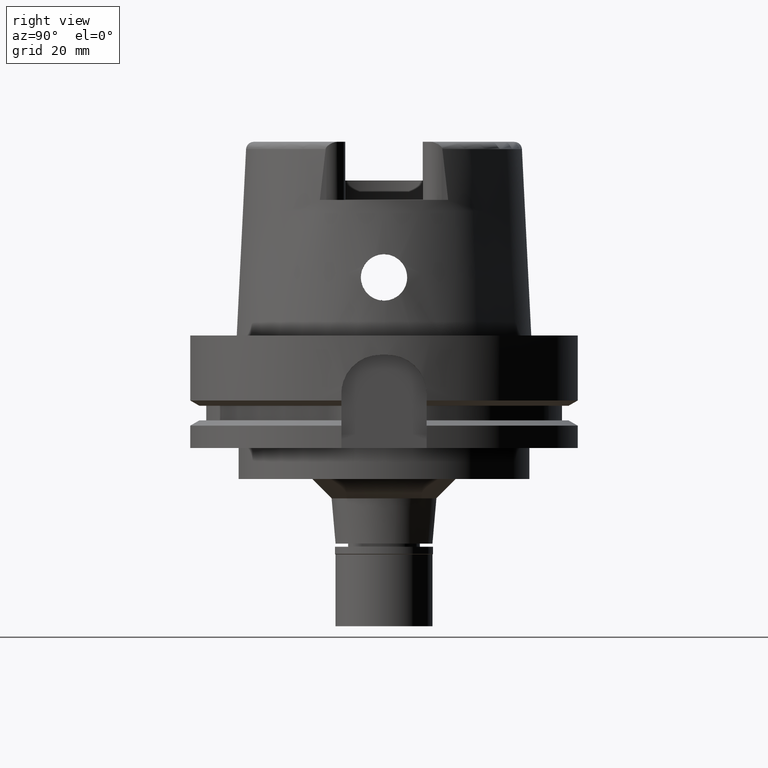
[diagram: clean part render]
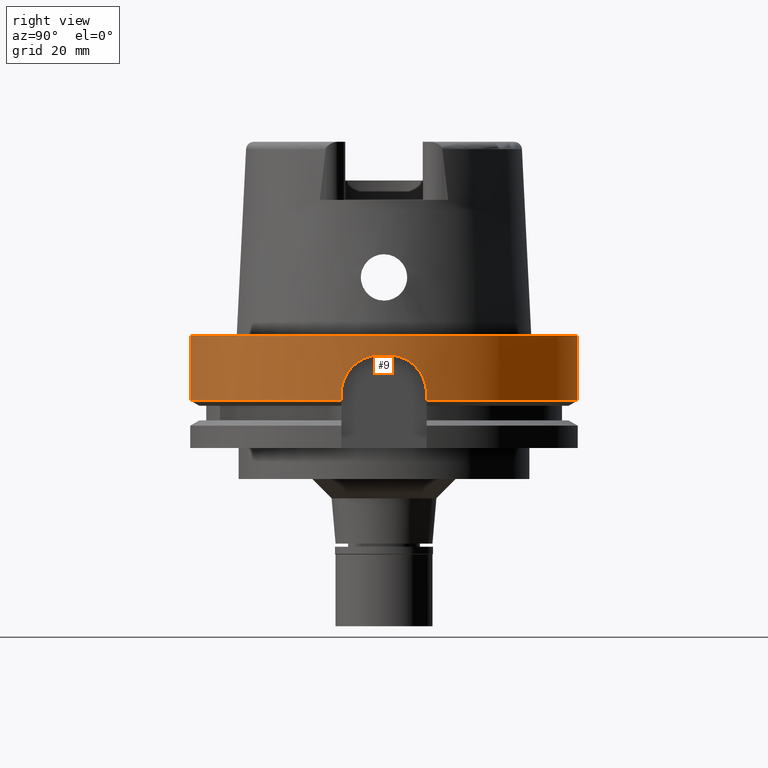
[diagram: same view with one face highlighted and labeled with its STEP entity id]
A machine part, right view. The second image highlights one B-rep face of the part: STEP entity #9.
In plain terms, the highlighted cylindrical surface (partial cylindrical patch) has radius 50 mm, axis along (0, 0, 1).
Its self-contained STEP definition (entity closure, byte-faithful):
#1 = CARTESIAN_POINT ( 'NONE',  ( 49.05095482324169609, 9.696311394972697784, -10.05999921804241382 ) ) ;
#9 = ADVANCED_FACE ( 'NONE', ( #4326 ), #3447, .T. ) ;
#30 = VERTEX_POINT ( 'NONE', #4841 ) ;
#90 = DIRECTION ( 'NONE',  ( 0.0000000000000000000, 0.0000000000000000000, 1.000000000000000000 ) ) ;
#122 = AXIS2_PLACEMENT_3D ( 'NONE', #2315, #4442, #4383 ) ;
#126 = CARTESIAN_POINT ( 'NONE',  ( 48.93204932106058891, 10.27888066096183017, -11.27130461237313774 ) ) ;
#151 = CARTESIAN_POINT ( 'NONE',  ( 49.54395205905042587, 6.737176145991467635, -6.809301599435453767 ) ) ;
#177 = CARTESIAN_POINT ( 'NONE',  ( 49.98999899980000095, 1.000000000000000000, -5.000000000000000000 ) ) ;
#178 = VERTEX_POINT ( 'NONE', #1719 ) ;
#186 = EDGE_CURVE ( 'NONE', #5481, #30, #261, .T. ) ;
#200 = CARTESIAN_POINT ( 'NONE',  ( 49.97768333252360407, 1.615660194660444304, -4.999999999999999112 ) ) ;
#231 = CARTESIAN_POINT ( 'NONE',  ( 49.56347143068069272, 6.592588605138403501, -6.710066077390601791 ) ) ;
#258 = CARTESIAN_POINT ( 'NONE',  ( 49.25298270592912075, 8.612590504345666531, -8.512905816384826352 ) ) ;
#261 = CIRCLE ( 'NONE', #1940, 49.99999999999999289 ) ;
#279 = CARTESIAN_POINT ( 'NONE',  ( 49.74236008365506478, -5.076685092396129306, -5.864031950467138543 ) ) ;
#306 = CARTESIAN_POINT ( 'NONE',  ( 49.79471274693063521, -4.526856397489572359, -5.641893968306293417 ) ) ;
#332 = CARTESIAN_POINT ( 'NONE',  ( 49.34900665884951110, -8.042112749387664294, -7.900079859515768632 ) ) ;
#352 = CARTESIAN_POINT ( 'NONE',  ( 48.77499359303000404, -11.00000000000000000, -16.75240473580999989 ) ) ;
#357 = CARTESIAN_POINT ( 'NONE',  ( 49.57046751975524757, -6.539781382126903075, -6.674687371063861896 ) ) ;
#433 = VERTEX_POINT ( 'NONE', #352 ) ;
#448 = CARTESIAN_POINT ( 'NONE',  ( 49.13126699842965195, -9.280029314163018128, -9.392725161450051985 ) ) ;
#457 = DIRECTION ( 'NONE',  ( 0.0000000000000000000, 1.000000000000000000, 0.0000000000000000000 ) ) ;
#458 = CIRCLE ( 'NONE', #3254, 50.00000000000000000 ) ;
#478 = CARTESIAN_POINT ( 'NONE',  ( 48.84379501381751965, -10.69422059862917251, -12.46040092834542001 ) ) ;
#513 = CARTESIAN_POINT ( 'NONE',  ( 48.88507586628999491, -10.50362418948851051, -11.81325723719032972 ) ) ;
#559 = CARTESIAN_POINT ( 'NONE',  ( 48.92624766774750356, 10.30653459415792739, -11.34054824616100454 ) ) ;
#600 = LINE ( 'NONE', #627, #1931 ) ;
#627 = CARTESIAN_POINT ( 'NONE',  ( 0.0000000000000000000, 50.00000000000000000, -1.184237892933999964E-13 ) ) ;
#637 = CARTESIAN_POINT ( 'NONE',  ( 49.76449959219799979, 4.847137998699801997, -5.769634468972665076 ) ) ;
#658 = LINE ( 'NONE', #1933, #4538 ) ;
#662 = VECTOR ( 'NONE', #3909, 1000.000000000000000 ) ;
#664 = CARTESIAN_POINT ( 'NONE',  ( 49.82800169776914601, 4.193400992416842499, -5.497997735035441202 ) ) ;
#665 = ORIENTED_EDGE ( 'NONE', *, *, #1826, .T. ) ;
#691 = CARTESIAN_POINT ( 'NONE',  ( 49.33579164445059462, 8.122802602771269420, -7.981028084306595716 ) ) ;
#708 = CARTESIAN_POINT ( 'NONE',  ( 49.83928797758800044, -4.005200320498488509, -5.460771316442448509 ) ) ;
#719 = CARTESIAN_POINT ( 'NONE',  ( 49.76218284074860776, 4.870869903975499682, -5.779563446591041931 ) ) ;
#736 = CARTESIAN_POINT ( 'NONE',  ( 49.77034752852134147, -4.786698336673743448, -5.744675483849418285 ) ) ;
#795 = CARTESIAN_POINT ( 'NONE',  ( 49.82619601168302381, -4.165932276114019395, -5.512860155650775695 ) ) ;
#831 = CARTESIAN_POINT ( 'NONE',  ( 0.0000000000000000000, -50.00000000000000000, -16.75240473580999989 ) ) ;
#916 = CARTESIAN_POINT ( 'NONE',  ( 49.12620687770655792, -9.306759742226931920, -9.432435516193244496 ) ) ;
#943 = CARTESIAN_POINT ( 'NONE',  ( 48.97169891548371368, -10.08840653669290788, -10.82782731911697738 ) ) ;
#992 = CARTESIAN_POINT ( 'NONE',  ( 48.87683747290292757, 10.53978459067534246, -11.99662588645743178 ) ) ;
#1018 = CARTESIAN_POINT ( 'NONE',  ( 48.98876809537706123, 10.00656419455478208, -10.64231856320245306 ) ) ;
#1065 = CARTESIAN_POINT ( 'NONE',  ( 49.29527051082547473, 8.365870290598243386, -8.235872764562405024 ) ) ;
#1081 = LINE ( 'NONE', #4515, #2840 ) ;
#1110 = CARTESIAN_POINT ( 'NONE',  ( 49.77512326118930019, -4.736787359545924225, -5.724374289182671660 ) ) ;
#1116 = CARTESIAN_POINT ( 'NONE',  ( 49.56495839145136273, 6.581404754218927344, -6.702535161427636723 ) ) ;
#1144 = CARTESIAN_POINT ( 'NONE',  ( 49.31202024386661265, 8.266137333736326198, -8.129365833777805861 ) ) ;
#1163 = CARTESIAN_POINT ( 'NONE',  ( 49.61824516501964411, -6.166927286345718073, -6.437851523559962708 ) ) ;
#1165 = DIRECTION ( 'NONE',  ( -5.027793947017000297E-13, 6.690209687562999968E-14, -1.000000000000000000 ) ) ;
#1166 = EDGE_CURVE ( 'NONE', #5234, #30, #3745, .T. ) ;
#1190 = CARTESIAN_POINT ( 'NONE',  ( 49.35751660499833804, -7.989711147771029864, -7.848396120222361994 ) ) ;
#1220 = CARTESIAN_POINT ( 'NONE',  ( 49.97777199570049333, -1.611227922893269326, -5.000000000000000000 ) ) ;
#1306 = CIRCLE ( 'NONE', #122, 50.00000000000000711 ) ;
#1307 = CARTESIAN_POINT ( 'NONE',  ( 0.0000000000000000000, 0.0000000000000000000, -16.75240473580999989 ) ) ;
#1308 = CARTESIAN_POINT ( 'NONE',  ( 48.94161125760501108, -10.23321121207043127, -11.15970076059552341 ) ) ;
#1322 = CARTESIAN_POINT ( 'NONE',  ( 49.08970412640923087, 9.497749254431120391, -9.727263144985290211 ) ) ;
#1334 = DIRECTION ( 'NONE',  ( 0.0000000000000000000, 0.0000000000000000000, 1.000000000000000000 ) ) ;
#1336 = CARTESIAN_POINT ( 'NONE',  ( 49.08763419605557488, -9.510332042757786652, -9.736533737857694604 ) ) ;
#1376 = DIRECTION ( 'NONE',  ( 0.0000000000000000000, 0.0000000000000000000, 1.000000000000000000 ) ) ;
#1439 = CARTESIAN_POINT ( 'NONE',  ( 48.93720429830755592, 10.25427356529522527, -11.21073789223006756 ) ) ;
#1464 = CARTESIAN_POINT ( 'NONE',  ( 49.74176433465887470, 5.075847373063099965, -5.867783960776184138 ) ) ;
#1468 = ORIENTED_EDGE ( 'NONE', *, *, #4079, .F. ) ;
#1480 = VERTEX_POINT ( 'NONE', #3122 ) ;
#1492 = CARTESIAN_POINT ( 'NONE',  ( 49.73093527618538445, 5.180377013862340618, -5.915370642198645612 ) ) ;
#1520 = CARTESIAN_POINT ( 'NONE',  ( 49.17859916705108247, 9.029240655114248781, -9.030228117378577224 ) ) ;
#1540 = CARTESIAN_POINT ( 'NONE',  ( 49.57109369463285020, -6.535032488322276123, -6.671529343000582202 ) ) ;
#1545 = CARTESIAN_POINT ( 'NONE',  ( 49.23336761411814422, 8.723941550019686630, -8.646461821240968959 ) ) ;
#1564 = CARTESIAN_POINT ( 'NONE',  ( 49.71277918425451503, -5.358872244497185022, -5.993988480459011114 ) ) ;
#1573 = CARTESIAN_POINT ( 'NONE',  ( 49.32052251127361586, 8.215218342224645198, -8.075766956423674259 ) ) ;
#1599 = CARTESIAN_POINT ( 'NONE',  ( 49.98999899980000095, -1.000000000000000000, -5.000000000000000000 ) ) ;
#1627 = CARTESIAN_POINT ( 'NONE',  ( 49.37894510030267270, -7.855899084649311526, -7.719912824610877244 ) ) ;
#1708 = CARTESIAN_POINT ( 'NONE',  ( 48.77499359303000404, -11.00000000000000000, -15.00000000000000000 ) ) ;
#1713 = VERTEX_POINT ( 'NONE', #831 ) ;
#1719 = CARTESIAN_POINT ( 'NONE',  ( 0.0000000000000000000, 50.00000000000000000, -1.184237892933999964E-13 ) ) ;
#1757 = AXIS2_PLACEMENT_3D ( 'NONE', #2189, #90, #457 ) ;
#1797 = CARTESIAN_POINT ( 'NONE',  ( 48.99223727873798140, -9.988510812114260062, -10.61464865697847060 ) ) ;
#1826 = EDGE_CURVE ( 'NONE', #4013, #2599, #1306, .T. ) ;
#1838 = CARTESIAN_POINT ( 'NONE',  ( 48.77499359303000404, 11.00000000000000000, -15.00000000000000000 ) ) ;
#1867 = CARTESIAN_POINT ( 'NONE',  ( 48.93456558098323228, 10.26687272114647342, -11.24165145567535795 ) ) ;
#1893 = ORIENTED_EDGE ( 'NONE', *, *, #3766, .F. ) ;
#1913 = CARTESIAN_POINT ( 'NONE',  ( 49.12148124761662871, 9.331670381157186611, -9.469784525104023132 ) ) ;
#1931 = VECTOR ( 'NONE', #2331, 1000.000000000000000 ) ;
#1933 = CARTESIAN_POINT ( 'NONE',  ( 48.77499359303000404, -11.00000000000000000, -15.00000000000000000 ) ) ;
#1940 = AXIS2_PLACEMENT_3D ( 'NONE', #3866, #1376, #3417 ) ;
#1942 = CARTESIAN_POINT ( 'NONE',  ( 49.64285532161042624, 5.971884126123517156, -6.317313123862472679 ) ) ;
#1958 = EDGE_CURVE ( 'NONE', #5539, #433, #658, .T. ) ;
#1981 = DIRECTION ( 'NONE',  ( 5.027793947017000297E-13, 7.095676941355000738E-14, 1.000000000000000000 ) ) ;
#1986 = CARTESIAN_POINT ( 'NONE',  ( 49.57421791565294455, -6.511295992124447096, -6.655789839960895904 ) ) ;
#1991 = CARTESIAN_POINT ( 'NONE',  ( 49.50012422973276216, 7.051113950372408290, -7.036905255575510054 ) ) ;
#2042 = CARTESIAN_POINT ( 'NONE',  ( 49.46572590919853951, -7.288404495435392150, -7.222930841802291724 ) ) ;
#2093 = CARTESIAN_POINT ( 'NONE',  ( 49.89780035065740549, -3.201458932665213197, -5.239903529428935336 ) ) ;
#2189 = CARTESIAN_POINT ( 'NONE',  ( 0.0000000000000000000, 0.0000000000000000000, -74.73999999999999488 ) ) ;
#2294 = CARTESIAN_POINT ( 'NONE',  ( 48.89338710338226690, 10.46229290173129911, -11.75732859572777933 ) ) ;
#2315 = CARTESIAN_POINT ( 'NONE',  ( 0.0000000000000000000, 0.0000000000000000000, -16.75240473580999989 ) ) ;
#2331 = DIRECTION ( 'NONE',  ( 0.0000000000000000000, -2.969006079282000197E-14, -1.000000000000000000 ) ) ;
#2342 = CARTESIAN_POINT ( 'NONE',  ( 49.39715944835925399, 7.748618571495931917, -7.604565780601082459 ) ) ;
#2367 = CARTESIAN_POINT ( 'NONE',  ( 49.87797447716385335, 3.540891715071218471, -5.305947129251676664 ) ) ;
#2385 = EDGE_CURVE ( 'NONE', #4013, #5234, #1081, .T. ) ;
#2411 = CARTESIAN_POINT ( 'NONE',  ( 49.35242107169331405, -8.021117419622752820, -7.879316875733634262 ) ) ;
#2421 = CARTESIAN_POINT ( 'NONE',  ( 49.55686768337658066, 6.641966254126633551, -6.743537120162468312 ) ) ;
#2440 = CARTESIAN_POINT ( 'NONE',  ( 49.87624805648442106, -3.522971893539049493, -5.317693239803984007 ) ) ;
#2466 = CARTESIAN_POINT ( 'NONE',  ( 49.55026962667979973, -6.692786084210452735, -6.776623425449725957 ) ) ;
#2497 = CARTESIAN_POINT ( 'NONE',  ( 49.58720533175613809, -6.411770298985470795, -6.590701201874563431 ) ) ;
#2528 = CARTESIAN_POINT ( 'NONE',  ( 49.25550433216080393, -8.600067261826646714, -8.492593365094403879 ) ) ;
#2583 = CARTESIAN_POINT ( 'NONE',  ( 48.96176082046405043, -10.13648416590796586, -10.93369064382065226 ) ) ;
#2599 = VERTEX_POINT ( 'NONE', #4279 ) ;
#2626 = CARTESIAN_POINT ( 'NONE',  ( 48.77499359303001114, 10.99999999999999822, -14.38474386414986839 ) ) ;
#2640 = CARTESIAN_POINT ( 'NONE',  ( 49.00681241852752379, -9.916925832099705573, -10.47058998774578775 ) ) ;
#2668 = CARTESIAN_POINT ( 'NONE',  ( 48.95074577783763914, -10.18944028086071896, -11.05580408360995825 ) ) ;
#2676 = ORIENTED_EDGE ( 'NONE', *, *, #4321, .T. ) ;
#2696 = EDGE_CURVE ( 'NONE', #178, #1480, #458, .T. ) ;
#2711 = CARTESIAN_POINT ( 'NONE',  ( 48.91492284048040062, 10.36038691487831009, -11.47923629230718134 ) ) ;
#2735 = CARTESIAN_POINT ( 'NONE',  ( 49.03475261627662718, 9.777875501263391556, -10.20669235202543312 ) ) ;
#2763 = CARTESIAN_POINT ( 'NONE',  ( 49.11953311379578935, 9.341922580080341376, -9.485259849241435504 ) ) ;
#2787 = CARTESIAN_POINT ( 'NONE',  ( 49.60597765471455034, 6.272245852468152805, -6.494812297020764014 ) ) ;
#2813 = CARTESIAN_POINT ( 'NONE',  ( 49.56133434481287026, 6.608618077059102092, -6.720892485299681418 ) ) ;
#2821 = CARTESIAN_POINT ( 'NONE',  ( 0.0000000000000000000, 0.0000000000000000000, -1.989519660127999812E-13 ) ) ;
#2834 = CARTESIAN_POINT ( 'NONE',  ( 49.60418535492067349, -6.279522649363656228, -6.506439944750114890 ) ) ;
#2840 = VECTOR ( 'NONE', #1981, 1000.000000000000000 ) ;
#2842 = CARTESIAN_POINT ( 'NONE',  ( 49.33800081813407701, 8.109361115241176421, -7.967431103858911179 ) ) ;
#2860 = CARTESIAN_POINT ( 'NONE',  ( 49.76923908604391755, -4.798215348591450713, -5.749397671466452309 ) ) ;
#2866 = CARTESIAN_POINT ( 'NONE',  ( 49.75969433098740069, 4.896275059021053089, -5.790242509444521346 ) ) ;
#2886 = CARTESIAN_POINT ( 'NONE',  ( 49.57203231307492786, -6.527909914189465646, -6.666797204969920898 ) ) ;
#2912 = CARTESIAN_POINT ( 'NONE',  ( 49.77226144005544484, -4.766736469233099349, -5.736533447808266573 ) ) ;
#2948 = CARTESIAN_POINT ( 'NONE',  ( 49.29774453635609177, -8.355866761469293635, -8.213089186378317308 ) ) ;
#3028 = CARTESIAN_POINT ( 'NONE',  ( 49.05318653075627111, -9.685954689165269471, -10.03384690581624561 ) ) ;
#3057 = CARTESIAN_POINT ( 'NONE',  ( 49.13707316196362029, -9.249304267639848476, -9.347503843436882676 ) ) ;
#3082 = CARTESIAN_POINT ( 'NONE',  ( 48.94538310691523009, -10.21515207871568087, -11.11649793287929633 ) ) ;
#3122 = CARTESIAN_POINT ( 'NONE',  ( 0.0000000000000000000, -50.00000000000000000, -1.989519660127999812E-13 ) ) ;
#3155 = CARTESIAN_POINT ( 'NONE',  ( 48.96160788143812681, 10.13768149222065773, -10.92674618092286210 ) ) ;
#3205 = CARTESIAN_POINT ( 'NONE',  ( 49.11369404882755418, 9.372598822072999880, -9.531868871871568061 ) ) ;
#3226 = CARTESIAN_POINT ( 'NONE',  ( 49.11777601695181517, 9.351162884186718927, -9.499245795111139756 ) ) ;
#3229 = ORIENTED_EDGE ( 'NONE', *, *, #1166, .F. ) ;
#3245 = CARTESIAN_POINT ( 'NONE',  ( 49.18358211763085563, -8.999916653308364545, -8.998199629941854738 ) ) ;
#3251 = CARTESIAN_POINT ( 'NONE',  ( 49.10560181062576390, 9.414973498855855993, -9.597069029929128803 ) ) ;
#3254 = AXIS2_PLACEMENT_3D ( 'NONE', #2821, #5327, #4483 ) ;
#3266 = AXIS2_PLACEMENT_3D ( 'NONE', #1307, #1334, #5132 ) ;
#3273 = CARTESIAN_POINT ( 'NONE',  ( 49.95319395790239270, -2.242612221350781088, -5.056181163375384813 ) ) ;
#3275 = ORIENTED_EDGE ( 'NONE', *, *, #1958, .F. ) ;
#3280 = CARTESIAN_POINT ( 'NONE',  ( 49.28444375782853371, 8.429552218092029037, -8.305955249467572798 ) ) ;
#3282 = CARTESIAN_POINT ( 'NONE',  ( 48.77499359303000404, 11.00000000000000000, -15.00000000000000000 ) ) ;
#3300 = CARTESIAN_POINT ( 'NONE',  ( 49.66313321680033965, -5.795312438285580292, -6.223213497941753936 ) ) ;
#3327 = CARTESIAN_POINT ( 'NONE',  ( 49.78173752066418700, -4.666863409711820232, -5.696379719022205634 ) ) ;
#3349 = CARTESIAN_POINT ( 'NONE',  ( 49.34706058578528598, -8.054047993609556144, -7.911941462446355544 ) ) ;
#3381 = CARTESIAN_POINT ( 'NONE',  ( 48.94097702067983846, -10.23624613488864377, -11.16700207308052484 ) ) ;
#3401 = LINE ( 'NONE', #4674, #662 ) ;
#3417 = DIRECTION ( 'NONE',  ( 0.9997999799959990108, -0.02000000000000000389, 0.0000000000000000000 ) ) ;
#3447 = CYLINDRICAL_SURFACE ( 'NONE', #1757, 50.00000000000000000 ) ;
#3451 = CARTESIAN_POINT ( 'NONE',  ( 49.07656918368707721, 9.565369103638674986, -9.838429306940529528 ) ) ;
#3534 = CARTESIAN_POINT ( 'NONE',  ( 48.82931032896220103, 10.75943768893700536, -12.79573913983516142 ) ) ;
#3563 = CARTESIAN_POINT ( 'NONE',  ( 48.93624971805925128, 10.25883267187621506, -11.22188785704377345 ) ) ;
#3590 = CARTESIAN_POINT ( 'NONE',  ( 49.56451591240204380, 6.584735606301879152, -6.704776024321682293 ) ) ;
#3612 = CARTESIAN_POINT ( 'NONE',  ( 49.34007748869855448, 8.096714172664933429, -7.954667811812837996 ) ) ;
#3689 = CARTESIAN_POINT ( 'NONE',  ( 49.53752737374780679, 6.783967840187898446, -6.842207492435630201 ) ) ;
#3741 = CARTESIAN_POINT ( 'NONE',  ( 49.41009803858081995, -7.656968131456276083, -7.537098789960494649 ) ) ;
#3745 = B_SPLINE_CURVE_WITH_KNOTS ( 'NONE', 3,
 ( #1838, #2626, #4845, #3534, #5263, #992, #2294, #2711, #559, #126, #1867, #3563, #1439, #3155, #1018, #2735, #1, #3451, #1322, #3251, #3205, #3226, #2763, #4971, #1913, #5395, #1520, #1545, #258, #3280, #1065, #1144, #1573, #5318, #691, #2842, #4498, #3612, #2342, #4997, #1991, #4475, #3689, #151, #4551, #2421, #2813, #231, #3590, #1116, #4951, #5346, #2787, #1942, #4525, #4928, #1492, #1464, #4123, #2866, #719, #5419, #637, #664, #2367, #4065, #200, #177 ),
 .UNSPECIFIED., .F., .F.,
 ( 4, 2, 2, 1, 1, 1, 1, 2, 2, 2, 2, 1, 1, 1, 1, 2, 2, 2, 2, 2, 1, 1, 1, 2, 2, 2, 2, 2, 1, 1, 1, 1, 2, 2, 2, 2, 1, 1, 1, 2, 2, 2, 4 ),
 ( 0.0000000000000000000, 0.1249999999999913958, 0.1874999999999869549, 0.2187499999999847622, 0.2343749999999835409, 0.2421874999999830691, 0.2460937499999827638, 0.2480468749999827638, 0.2499999999999827638, 0.3124999999999861222, 0.3437499999999875655, 0.3593749999999881206, 0.3671874999999884537, 0.3710937499999883982, 0.3730468749999883982, 0.3740234374999885647, 0.3749999999999887312, 0.4374999999999867328, 0.4687499999999858447, 0.4843749999999852895, 0.4921874999999850675, 0.4960937499999848455, 0.4980468749999847899, 0.4990234374999849010, 0.4999999999999850120, 0.5624999999999897859, 0.5937499999999922284, 0.6093749999999933387, 0.6171874999999940048, 0.6210937499999941158, 0.6230468749999941158, 0.6240234374999941158, 0.6245117187499941158, 0.6249999999999940048, 0.6874999999999931166, 0.7187499999999924505, 0.7343749999999923395, 0.7421874999999922284, 0.7460937499999922284, 0.7480468749999923395, 0.7499999999999924505, 0.8749999999999961142, 1.000000000000000000 ),
 .UNSPECIFIED. ) ;
#3766 = EDGE_CURVE ( 'NONE', #5481, #5539, #4105, .T. ) ;
#3842 = ORIENTED_EDGE ( 'NONE', *, *, #4711, .T. ) ;
#3856 = CARTESIAN_POINT ( 'NONE',  ( 49.12721376169836418, -9.301443656420424588, -9.424513683781681195 ) ) ;
#3866 = CARTESIAN_POINT ( 'NONE',  ( 0.0000000000000000000, 0.0000000000000000000, -5.000000000000000000 ) ) ;
#3886 = ORIENTED_EDGE ( 'NONE', *, *, #2385, .F. ) ;
#3909 = DIRECTION ( 'NONE',  ( 0.0000000000000000000, 2.969006079282000197E-14, -1.000000000000000000 ) ) ;
#4008 = EDGE_LOOP ( 'NONE', ( #3229, #3886, #665, #1468, #4952, #2676, #3842, #3275, #1893, #5168 ) ) ;
#4013 = VERTEX_POINT ( 'NONE', #4862 ) ;
#4065 = CARTESIAN_POINT ( 'NONE',  ( 49.95281529454109659, 2.252019096184137759, -5.057000455025072227 ) ) ;
#4079 = EDGE_CURVE ( 'NONE', #178, #2599, #600, .T. ) ;
#4105 = B_SPLINE_CURVE_WITH_KNOTS ( 'NONE', 3,
 ( #1599, #1220, #3273, #2093, #2440, #708, #795, #5497, #306, #3327, #1110, #2912, #736, #2860, #279, #1564, #3300, #5076, #1163, #2834, #2497, #4597, #1986, #2886, #1540, #357, #4993, #2466, #4176, #2042, #4202, #3741, #5473, #1627, #5044, #1190, #2411, #332, #3349, #2948, #2528, #4546, #3245, #4116, #4252, #3057, #448, #4773, #3856, #4800, #916, #1336, #3028, #2640, #1797, #943, #2583, #2668, #3082, #4378, #1308, #3381, #513, #478, #5587, #5218, #1708 ),
 .UNSPECIFIED., .F., .F.,
 ( 4, 2, 2, 2, 1, 1, 1, 2, 2, 2, 2, 1, 1, 1, 1, 1, 2, 2, 2, 2, 2, 1, 1, 2, 2, 2, 2, 1, 1, 1, 1, 2, 2, 2, 2, 1, 1, 1, 2, 2, 2, 4 ),
 ( 0.0000000000000000000, 0.1250000000000544564, 0.1875000000000816291, 0.2187500000000950906, 0.2343750000001018075, 0.2421875000001052214, 0.2460937500001069977, 0.2480468750001078027, 0.2500000000001086353, 0.3125000000001299516, 0.3437500000001407208, 0.3593750000001459943, 0.3671875000001485478, 0.3710937500001498801, 0.3730468750001506018, 0.3740234375001508238, 0.3745117187501509348, 0.3750000000001510458, 0.4375000000001471601, 0.4687500000001454392, 0.4843750000001445510, 0.4921875000001442735, 0.4960937500001439404, 0.4980468750001437184, 0.5000000000001434408, 0.5625000000001328937, 0.5937500000001276756, 0.6093750000001246780, 0.6171875000001231237, 0.6210937500001221245, 0.6230468750001217915, 0.6240234375001216804, 0.6250000000001214584, 0.6875000000001028067, 0.7187500000000934808, 0.7343750000000889289, 0.7421875000000863754, 0.7460937500000852651, 0.7480468750000845990, 0.7500000000000840439, 0.8750000000000419664, 1.000000000000000000 ),
 .UNSPECIFIED. ) ;
#4116 = CARTESIAN_POINT ( 'NONE',  ( 49.16027409372483703, -9.125645309613981127, -9.170852820709880504 ) ) ;
#4123 = CARTESIAN_POINT ( 'NONE',  ( 49.75381488992552192, 4.955804004089851666, -5.815555583245995308 ) ) ;
#4176 = CARTESIAN_POINT ( 'NONE',  ( 49.52179454443815132, -6.901242488775507056, -6.920230186009076689 ) ) ;
#4202 = CARTESIAN_POINT ( 'NONE',  ( 49.44481036213915814, -7.429753071983009605, -7.338488913441458372 ) ) ;
#4252 = CARTESIAN_POINT ( 'NONE',  ( 49.14914333984935269, -9.185221578344949123, -9.254598775518756426 ) ) ;
#4279 = CARTESIAN_POINT ( 'NONE',  ( 1.065814103639999922E-14, 50.00000000000000000, -16.75240473580999989 ) ) ;
#4321 = EDGE_CURVE ( 'NONE', #1480, #1713, #3401, .T. ) ;
#4326 = FACE_OUTER_BOUND ( 'NONE', #4008, .T. ) ;
#4378 = CARTESIAN_POINT ( 'NONE',  ( 48.94311585874650206, -10.22600908022412014, -11.14243030050059780 ) ) ;
#4383 = DIRECTION ( 'NONE',  ( 0.9754998718605770724, 0.2199999999999950051, 0.0000000000000000000 ) ) ;
#4442 = DIRECTION ( 'NONE',  ( 0.0000000000000000000, 0.0000000000000000000, 1.000000000000000000 ) ) ;
#4475 = CARTESIAN_POINT ( 'NONE',  ( 49.51649341200594279, 6.935392824165130143, -6.950989979254960538 ) ) ;
#4483 = DIRECTION ( 'NONE',  ( 0.0000000000000000000, 1.000000000000000000, 0.0000000000000000000 ) ) ;
#4498 = CARTESIAN_POINT ( 'NONE',  ( 49.33947625477485843, 8.100377196960439008, -7.958360673340431291 ) ) ;
#4515 = CARTESIAN_POINT ( 'NONE',  ( 48.77499359303000404, 11.00000000000000000, -16.75240473580999989 ) ) ;
#4525 = CARTESIAN_POINT ( 'NONE',  ( 49.69283837019875705, 5.534888791772787364, -6.085856494625182300 ) ) ;
#4538 = VECTOR ( 'NONE', #1165, 1000.000000000000000 ) ;
#4546 = CARTESIAN_POINT ( 'NONE',  ( 49.20051615510828213, -8.907333957018138904, -8.876201296069288205 ) ) ;
#4551 = CARTESIAN_POINT ( 'NONE',  ( 49.55270913408737954, 6.672744140185537631, -6.764670223677944350 ) ) ;
#4597 = CARTESIAN_POINT ( 'NONE',  ( 49.57857109232828918, -6.478090229455450100, -6.633911966669819193 ) ) ;
#4674 = CARTESIAN_POINT ( 'NONE',  ( 0.0000000000000000000, -50.00000000000000000, -1.184237892933999964E-13 ) ) ;
#4711 = EDGE_CURVE ( 'NONE', #1713, #433, #4807, .T. ) ;
#4773 = CARTESIAN_POINT ( 'NONE',  ( 49.12842114801493665, -9.295067625178063508, -9.415024158489137207 ) ) ;
#4800 = CARTESIAN_POINT ( 'NONE',  ( 49.12641156278982635, -9.305679076487246348, -9.430825059179532843 ) ) ;
#4807 = CIRCLE ( 'NONE', #3266, 50.00000000000000000 ) ;
#4840 = CARTESIAN_POINT ( 'NONE',  ( 49.98999899980000095, -1.000000000000000000, -5.000000000000000000 ) ) ;
#4841 = CARTESIAN_POINT ( 'NONE',  ( 49.98999899980000095, 1.000000000000000000, -5.000000000000000000 ) ) ;
#4845 = CARTESIAN_POINT ( 'NONE',  ( 48.78857277701305151, 10.94306393370265162, -13.75218615735491490 ) ) ;
#4862 = CARTESIAN_POINT ( 'NONE',  ( 48.77499359303000404, 11.00000000000000000, -16.75240473580999989 ) ) ;
#4928 = CARTESIAN_POINT ( 'NONE',  ( 49.70861047776897124, 5.391461336228976720, -6.014498482609591079 ) ) ;
#4951 = CARTESIAN_POINT ( 'NONE',  ( 49.56525223171220773, 6.579191908138502853, -6.701047088341557156 ) ) ;
#4952 = ORIENTED_EDGE ( 'NONE', *, *, #2696, .T. ) ;
#4971 = CARTESIAN_POINT ( 'NONE',  ( 49.12070621878815047, 9.335750471928969674, -9.475934890664410304 ) ) ;
#4993 = CARTESIAN_POINT ( 'NONE',  ( 49.56999360002149047, -6.543372797515548456, -6.677078639999217025 ) ) ;
#4997 = CARTESIAN_POINT ( 'NONE',  ( 49.44397705957737088, 7.437641547995661462, -7.340743959377642902 ) ) ;
#5044 = CARTESIAN_POINT ( 'NONE',  ( 49.36922358098515673, -7.917053265386330807, -7.777801396750384733 ) ) ;
#5076 = CARTESIAN_POINT ( 'NONE',  ( 49.64570545792338407, -5.942969357695976562, -6.305337822040920415 ) ) ;
#5132 = DIRECTION ( 'NONE',  ( 0.0000000000000000000, -1.000000000000000000, 0.0000000000000000000 ) ) ;
#5168 = ORIENTED_EDGE ( 'NONE', *, *, #186, .T. ) ;
#5218 = CARTESIAN_POINT ( 'NONE',  ( 48.77499359303000404, -10.99999999999999645, -14.38098970958509781 ) ) ;
#5234 = VERTEX_POINT ( 'NONE', #3282 ) ;
#5263 = CARTESIAN_POINT ( 'NONE',  ( 48.84628430894104412, 10.68188746896974628, -12.47571011020050769 ) ) ;
#5318 = CARTESIAN_POINT ( 'NONE',  ( 49.33066477479972178, 8.153926039219154376, -8.012692683782601577 ) ) ;
#5327 = DIRECTION ( 'NONE',  ( 0.0000000000000000000, 0.0000000000000000000, -1.000000000000000000 ) ) ;
#5346 = CARTESIAN_POINT ( 'NONE',  ( 49.56522846814782213, 6.579371467062522072, -6.701167415852204989 ) ) ;
#5367 = CARTESIAN_POINT ( 'NONE',  ( 48.77499359303000404, -11.00000000000000000, -15.00000000000000000 ) ) ;
#5395 = CARTESIAN_POINT ( 'NONE',  ( 49.14752264016082250, 9.194527746588789796, -9.263340093670473507 ) ) ;
#5419 = CARTESIAN_POINT ( 'NONE',  ( 49.76383490265744314, 4.853957148825290169, -5.772481463363957843 ) ) ;
#5473 = CARTESIAN_POINT ( 'NONE',  ( 49.39797076356648375, -7.735228545150889090, -7.607518508293299675 ) ) ;
#5481 = VERTEX_POINT ( 'NONE', #4840 ) ;
#5497 = CARTESIAN_POINT ( 'NONE',  ( 49.80540015341630067, -4.406617402748709722, -5.597755838520018123 ) ) ;
#5539 = VERTEX_POINT ( 'NONE', #5367 ) ;
#5587 = CARTESIAN_POINT ( 'NONE',  ( 48.78875387718750289, -10.94236534398201321, -13.74427398433400427 ) ) ;